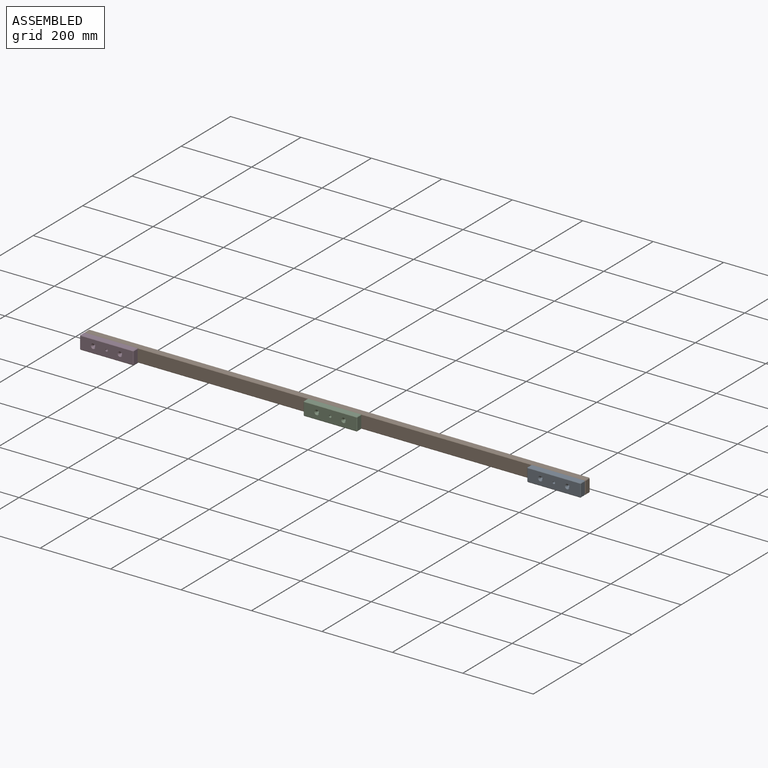
[diagram: assembled view]
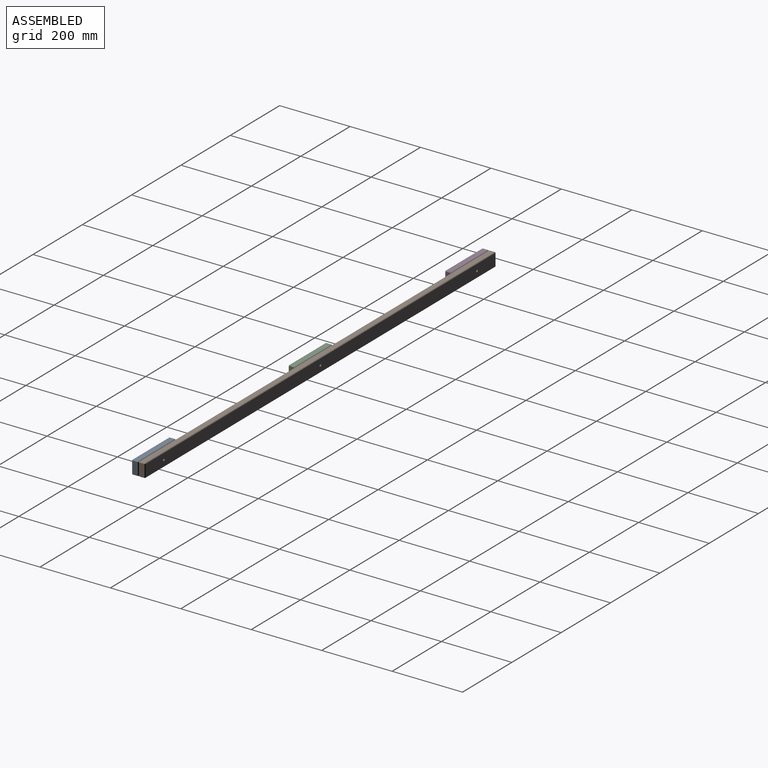
[diagram: assembled view, second angle]
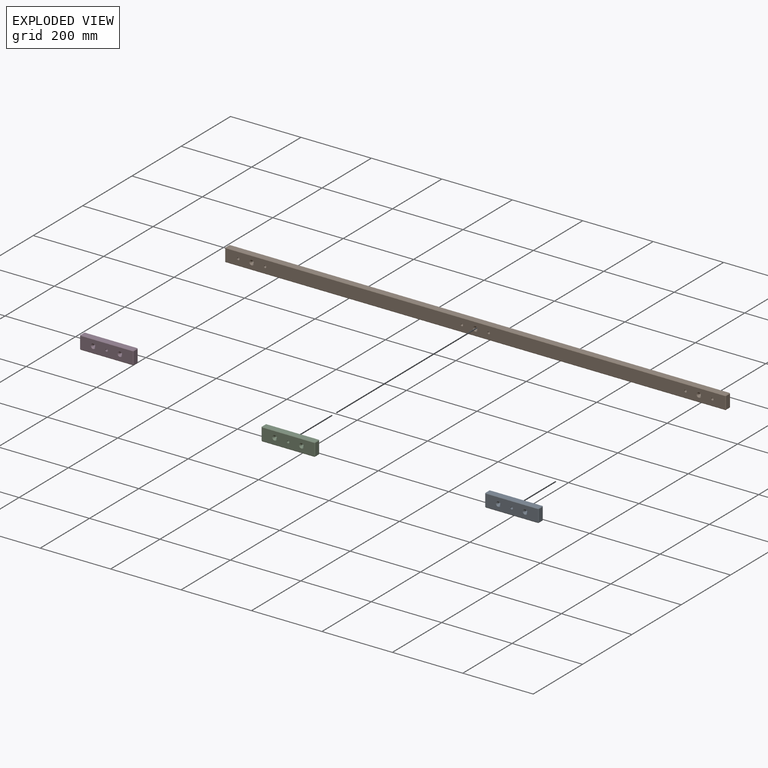
[diagram: exploded view]
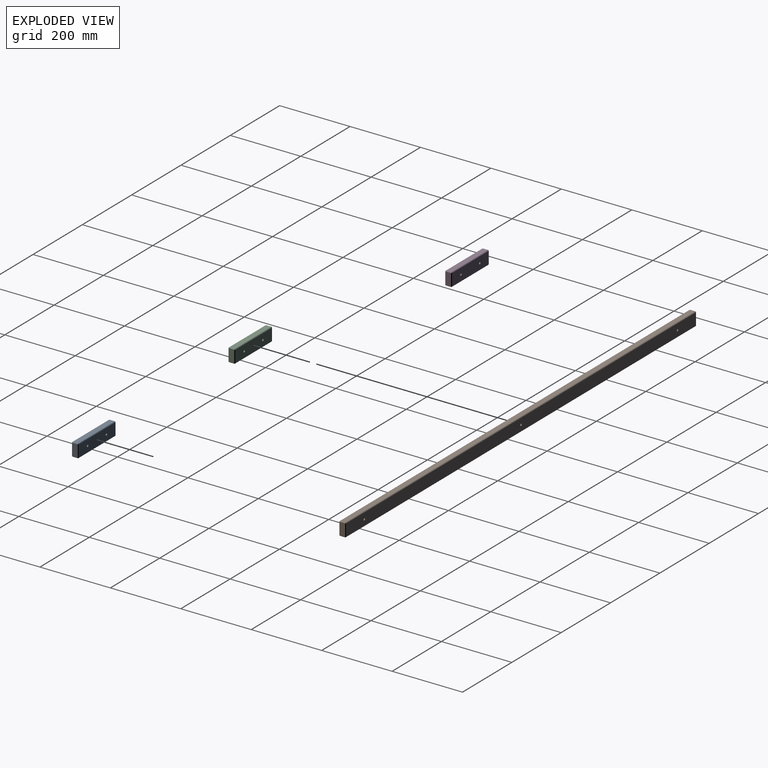
[diagram: exploded view, second angle]
ASSEMBLY  parts=4 mates=4
PART A: 32 faces, bbox 152.4x19.1x38.1 mm
  f0: plane 149.23x34.93mm, normal (0,1,0), area 5140mm2, adj f14,f19,f22,f25,f26,f28
  f1: plane 34.93x15.88mm, normal (-1,0,0), area 554.4mm2, adj f9,f10,f19,f20
  f2: plane 149.23x34.93mm, normal (0,-1,0), area 4890.1mm2, adj f6,f10,f11,f12,f27,f29,f31
  f3: plane 34.93x15.88mm, normal (1,0,0), area 554.4mm2, adj f12,f13,f21,f22
  f4: plane 149.23x15.88mm, normal (0,0,1), area 2368.9mm2, adj f6,f9,f13,f14
  f5: plane 149.23x15.88mm, normal (0,0,-1), area 2368.9mm2, adj f11,f20,f21,f25
  f6: plane 149.23x1.59mm, normal (0,-0.71,0.71), area 335mm2, adj f2,f4,f7,f8
  f7: plane 1.59x1.59mm, normal (-0.58,-0.58,0.58), area 2.2mm2, adj f6,f9,f10
  f8: plane 1.59x1.59mm, normal (0.58,-0.58,0.58), area 2.2mm2, adj f6,f12,f13
  f9: plane 15.88x1.59mm, normal (-0.71,0,0.71), area 35.6mm2, adj f1,f4,f7,f15
  f10: plane 34.93x1.59mm, normal (-0.71,-0.71,0), area 78.4mm2, adj f1,f2,f7,f16
  f11: plane 149.23x1.59mm, normal (0,-0.71,-0.71), area 335mm2, adj f2,f5,f16,f17
  f12: plane 34.93x1.59mm, normal (0.71,-0.71,0), area 78.4mm2, adj f2,f3,f8,f17
  f13: plane 15.88x1.59mm, normal (0.71,0,0.71), area 35.6mm2, adj f3,f4,f8,f18
  f14: plane 149.23x1.59mm, normal (0,0.71,0.71), area 335mm2, adj f0,f4,f15,f18
  f15: plane 1.59x1.59mm, normal (-0.58,0.58,0.58), area 2.2mm2, adj f9,f14,f19
  f16: plane 1.59x1.59mm, normal (-0.58,-0.58,-0.58), area 2.2mm2, adj f10,f11,f20
  f17: plane 1.59x1.59mm, normal (0.58,-0.58,-0.58), area 2.2mm2, adj f11,f12,f21
  f18: plane 1.59x1.59mm, normal (0.58,0.58,0.58), area 2.2mm2, adj f13,f14,f22
  f19: plane 34.93x1.59mm, normal (-0.71,0.71,0), area 78.4mm2, adj f0,f1,f15,f23
  f20: plane 15.88x1.59mm, normal (-0.71,0,-0.71), area 35.6mm2, adj f1,f5,f16,f23
  f21: plane 15.88x1.59mm, normal (0.71,0,-0.71), area 35.6mm2, adj f3,f5,f17,f24
  f22: plane 34.93x1.59mm, normal (0.71,0.71,0), area 78.4mm2, adj f0,f3,f18,f24
  f23: plane 1.59x1.59mm, normal (-0.58,0.58,-0.58), area 2.2mm2, adj f19,f20,f25
  f24: plane 1.59x1.59mm, normal (0.58,0.58,-0.58), area 2.2mm2, adj f21,f22,f25
  f25: plane 149.23x1.59mm, normal (0,0.71,-0.71), area 335mm2, adj f0,f5,f23,f24
  f26: cylinder r=3.38mm len=15.18mm, axis (0,-1,0), area 322.2mm2, adj f0,f27
  f27: cone r=3.38mm half-angle=41deg, axis (0,-1,0), area 163.1mm2, adj f2,f26
  f28: cylinder r=3.38mm len=15.18mm, axis (0,-1,0), area 322.2mm2, adj f0,f29
  f29: cone r=3.38mm half-angle=41deg, axis (0,-1,0), area 163.1mm2, adj f2,f28
  f30: cone r=0mm half-angle=59deg, axis (0,-1,0), area 41.8mm2, adj f31
  f31: cylinder r=3.38mm len=12.7mm, axis (0,-1,0), area 269.6mm2, adj f2,f30
PART B: 44 faces, bbox 1422.4x19.1x38.1 mm
  f0: plane 1419.23x34.93mm, normal (0,1,0), area 49458.9mm2, adj f14,f19,f22,f25,f26,f28,f30
  f1: plane 34.93x15.88mm, normal (-1,0,0), area 554.4mm2, adj f11,f20,f21,f25
  f2: plane 1419.23x34.93mm, normal (0,-1,0), area 48922.7mm2, adj f6,f10,f11,f12,f27,f29,f31,f33
  f3: plane 34.93x15.88mm, normal (1,0,0), area 554.4mm2, adj f6,f9,f13,f14
  f4: plane 1419.23x15.88mm, normal (0,0,1), area 22530.2mm2, adj f9,f10,f19,f20
  f5: plane 1419.23x15.88mm, normal (0,0,-1), area 22530.2mm2, adj f12,f13,f21,f22
  f6: plane 34.93x1.59mm, normal (0.71,-0.71,0), area 78.4mm2, adj f2,f3,f7,f8
  f7: plane 1.59x1.59mm, normal (0.58,-0.58,0.58), area 2.2mm2, adj f6,f9,f10
  f8: plane 1.59x1.59mm, normal (0.58,-0.58,-0.58), area 2.2mm2, adj f6,f12,f13
  f9: plane 15.88x1.59mm, normal (0.71,0,0.71), area 35.6mm2, adj f3,f4,f7,f15
  f10: plane 1419.23x1.59mm, normal (0,-0.71,0.71), area 3186.3mm2, adj f2,f4,f7,f16
  f11: plane 34.93x1.59mm, normal (-0.71,-0.71,0), area 78.4mm2, adj f1,f2,f16,f17
  f12: plane 1419.23x1.59mm, normal (0,-0.71,-0.71), area 3186.3mm2, adj f2,f5,f8,f17
  f13: plane 15.88x1.59mm, normal (0.71,0,-0.71), area 35.6mm2, adj f3,f5,f8,f18
  f14: plane 34.93x1.59mm, normal (0.71,0.71,0), area 78.4mm2, adj f0,f3,f15,f18
  f15: plane 1.59x1.59mm, normal (0.58,0.58,0.58), area 2.2mm2, adj f9,f14,f19
  f16: plane 1.59x1.59mm, normal (-0.58,-0.58,0.58), area 2.2mm2, adj f10,f11,f20
  f17: plane 1.59x1.59mm, normal (-0.58,-0.58,-0.58), area 2.2mm2, adj f11,f12,f21
  f18: plane 1.59x1.59mm, normal (0.58,0.58,-0.58), area 2.2mm2, adj f13,f14,f22
  f19: plane 1419.23x1.59mm, normal (0,0.71,0.71), area 3186.3mm2, adj f0,f4,f15,f23
  f20: plane 15.88x1.59mm, normal (-0.71,0,0.71), area 35.6mm2, adj f1,f4,f16,f23
  f21: plane 15.88x1.59mm, normal (-0.71,0,-0.71), area 35.6mm2, adj f1,f5,f17,f24
  f22: plane 1419.23x1.59mm, normal (0,0.71,-0.71), area 3186.3mm2, adj f0,f5,f18,f24
  f23: plane 1.59x1.59mm, normal (-0.58,0.58,0.58), area 2.2mm2, adj f19,f20,f25
  f24: plane 1.59x1.59mm, normal (-0.58,0.58,-0.58), area 2.2mm2, adj f21,f22,f25
  f25: plane 34.93x1.59mm, normal (-0.71,0.71,0), area 78.4mm2, adj f0,f1,f23,f24
  f26: cylinder r=3.38mm len=15.18mm, axis (0,-1,0), area 322.2mm2, adj f0,f27
  f27: cone r=3.38mm half-angle=41deg, axis (0,-1,0), area 163.1mm2, adj f2,f26
  f28: cylinder r=3.38mm len=15.18mm, axis (0,-1,0), area 322.2mm2, adj f0,f29
  f29: cone r=3.38mm half-angle=41deg, axis (0,-1,0), area 163.1mm2, adj f2,f28
  f30: cylinder r=3.38mm len=15.18mm, axis (0,-1,0), area 322.2mm2, adj f0,f31
  f31: cone r=3.38mm half-angle=41deg, axis (0,-1,0), area 163.1mm2, adj f2,f30
  f32: cone r=0mm half-angle=59deg, axis (0,-1,0), area 41.8mm2, adj f33
  f33: cylinder r=3.38mm len=12.7mm, axis (0,-1,0), area 269.6mm2, adj f2,f32
  f34: cone r=0mm half-angle=59deg, axis (0,-1,0), area 41.8mm2, adj f35
  f35: cylinder r=3.38mm len=12.7mm, axis (0,-1,0), area 269.6mm2, adj f2,f34
  f36: cone r=0mm half-angle=59deg, axis (0,-1,0), area 41.8mm2, adj f37
  f37: cylinder r=3.38mm len=12.7mm, axis (0,-1,0), area 269.6mm2, adj f2,f36
  f38: cone r=0mm half-angle=59deg, axis (0,-1,0), area 41.8mm2, adj f39
  f39: cylinder r=3.38mm len=12.7mm, axis (0,-1,0), area 269.6mm2, adj f2,f38
  f40: cone r=0mm half-angle=59deg, axis (0,-1,0), area 41.8mm2, adj f41
  f41: cylinder r=3.38mm len=12.7mm, axis (0,-1,0), area 269.6mm2, adj f2,f40
  f42: cone r=0mm half-angle=59deg, axis (0,-1,0), area 41.8mm2, adj f43
  f43: cylinder r=3.38mm len=12.7mm, axis (0,-1,0), area 269.6mm2, adj f2,f42
PART C: same geometry as A
PART D: same geometry as A
PLACE A t=(84.2,-268.77,90.14)mm
PLACE B t=(-38.81,-393.92,90.14)mm fixed
PLACE C t=(-550.8,-268.77,90.14)mm
PLACE D t=(-1185.8,-268.77,90.14)mm
MATE cylindrical B.f32 <-> D.f26  axis (0,-1,0) through (-1286.32,-271.72,109.19)mm
MATE fastened B.f36 <-> C.f26  axis (0,-1,0) through (-651.32,-271.72,109.19)mm
MATE fastened D.f26 <-> B.f32  axis (0,-1,0) through (-1286.32,-271.72,109.19)mm
MATE fastened B.f42 <-> A.f26  axis (0,-1,0) through (-16.32,-271.72,109.19)mm
